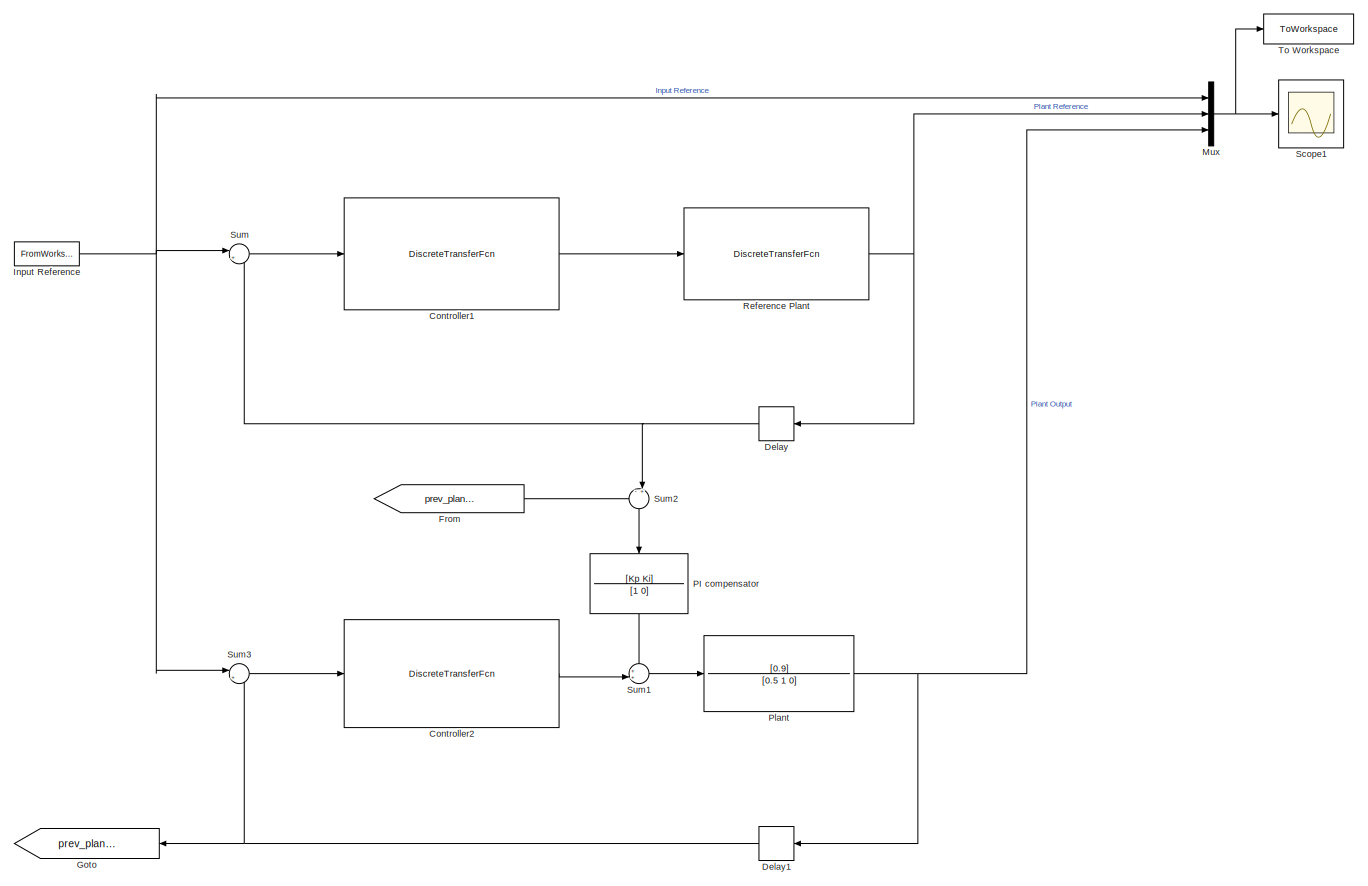
[diagram: root canvas - part 1/1, most of the canvas]
MODEL slx_62ed2360eb1d
KIND model
CONFIG AbsTol = auto
CONFIG EnableMultiTasking = off
CONFIG FixedStep = 0.01
CONFIG MaxStep = auto
CONFIG MinStep = auto
CONFIG RelTol = 1e-3
CONFIG SampleTimeConstraint = Unconstrained
CONFIG SolverName = FixedStepAuto
CONFIG StartTime = 0.0
CONFIG StopTime = 40.0
WORKSPACE source: mxarray member
WORKSPACE Ki: Simulink.Parameter (value not decoded)
WORKSPACE Kp: Simulink.Parameter (value not decoded)
WORKSPACE Ts: Simulink.Parameter (value not decoded)
WORKSPACE k: Simulink.Parameter (value not decoded)
BLOCK [DiscreteTransferFcn] Controller1
  Denominator = [1 -1.921 0.9231]
  InputPortMap = u0
  Numerator = [0.00045 0.0009 0.00045]
BLOCK [DiscreteTransferFcn] Controller2
  Denominator = [1 -1.921 0.9231]
  InputPortMap = u0
  Numerator = [0.00045 0.0009 0.00045]
BLOCK [Delay] Delay
  DelayLength = 1
  InputPortMap = u0
  NameLocation = top
BLOCK [Delay] Delay1
  DelayLength = 1
  InputPortMap = u0
  NameLocation = top
BLOCK [From] From
  GotoTag = prev_plant_output
BLOCK [Goto] Goto
  GotoTag = prev_plant_output
  NameLocation = top
BLOCK [FromWorkspace] Input Reference
  VariableName = simin
BLOCK [Mux] Mux
  DisplayOption = bar
  Inputs = 3
BLOCK [TransferFcn] PI compensator
  Denominator = [1 0]
  NameLocation = left
  Numerator = [Kp Ki]
BLOCK [TransferFcn] Plant
  Denominator = [0.5 1 0]
  Numerator = [0.9]
BLOCK [DiscreteTransferFcn] Reference Plant
  Denominator = [1 -1]
  InputPortMap = u0
  Numerator = [(k*Ts/2) (k*Ts/2)]
BLOCK [Scope] Scope1
  Floating = off
  NumInputPorts = 1
  ScopeSpecificationString = Simulink.scopes.TimeScopeBlockCfg('CurrentConfiguration', extmgr.ConfigurationSet(extmgr.Configuration('Core','General UI',true,'FigureColor',[1 1 1]),extmgr.Configuration('Core','Source UI',true),extmgr.Configuration('Sources','WiredSimulink',true,'DataLoggingVariableName','ScopeData1'),extmgr.Configuration('Visuals','Time Domain',true,'SerializedDisplays',{struct('MinYLimReal','-0.13621','MaxYLi...<+1884ch>
BLOCK [Sum] Sum
  Inputs = |+-
BLOCK [Sum] Sum1
  Inputs = ++|
BLOCK [Sum] Sum2
  Inputs = -+|
  NameLocation = left
BLOCK [Sum] Sum3
  Inputs = |+-
BLOCK [ToWorkspace] To Workspace
  FixptAsFi = on
  MaxDataPoints = inf
  SampleTime = -1
  SaveFormat = Timeseries
  VariableName = simout
LINE Controller1:1 -> Reference Plant:1
LINE Controller2:1 -> Sum1:2
NET Delay1:1 -> Goto:1, Sum3:2
NET Delay:1 -> Sum2:2, Sum:2
LINE From:1 -> Sum2:1
NET Input Reference:1 -> Mux:1, Sum3:1, Sum:1
NET Mux:1 -> Scope1:1, To Workspace:1
LINE PI compensator:1 -> Sum1:1
NET Plant:1 -> Delay1:1, Mux:3
NET Reference Plant:1 -> Delay:1, Mux:2
LINE Sum1:1 -> Plant:1
LINE Sum2:1 -> PI compensator:1
LINE Sum3:1 -> Controller2:1
LINE Sum:1 -> Controller1:1
note: NET lines group one-source signal fan-out (src -> all destinations, sorted); 1:1 wires keep LINE
